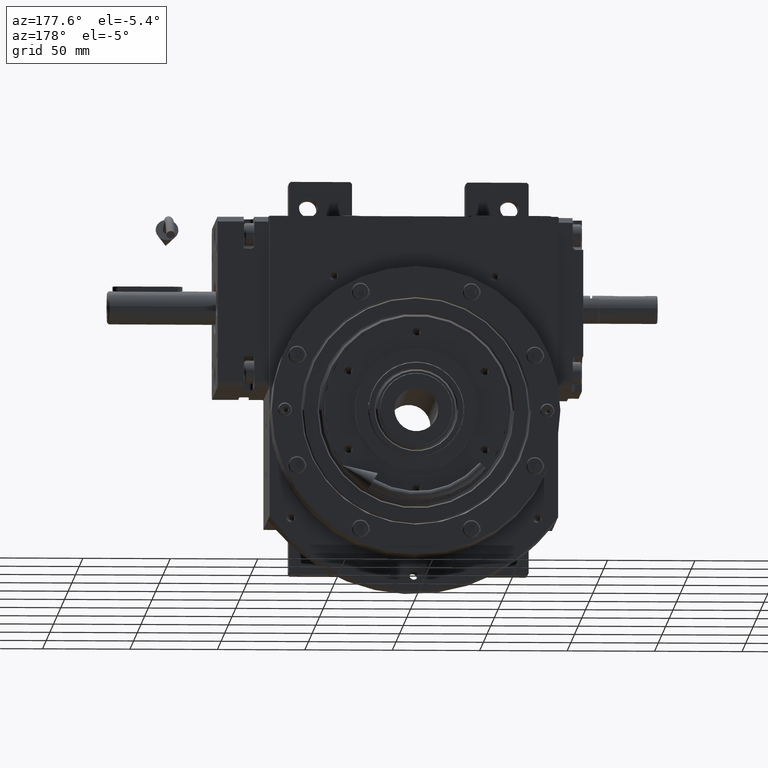
[diagram: clean part render]
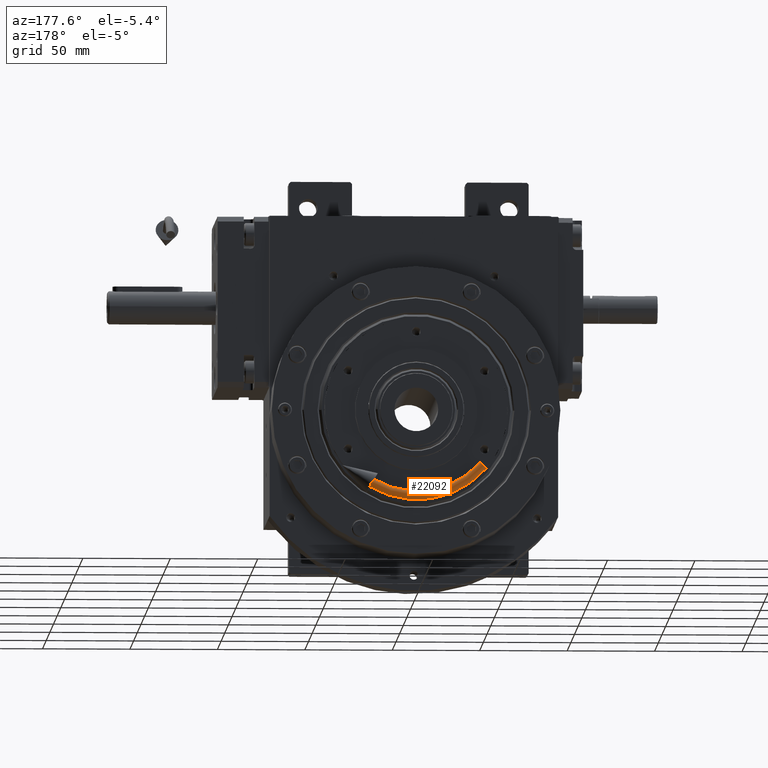
[diagram: same view with one face highlighted and labeled with its STEP entity id]
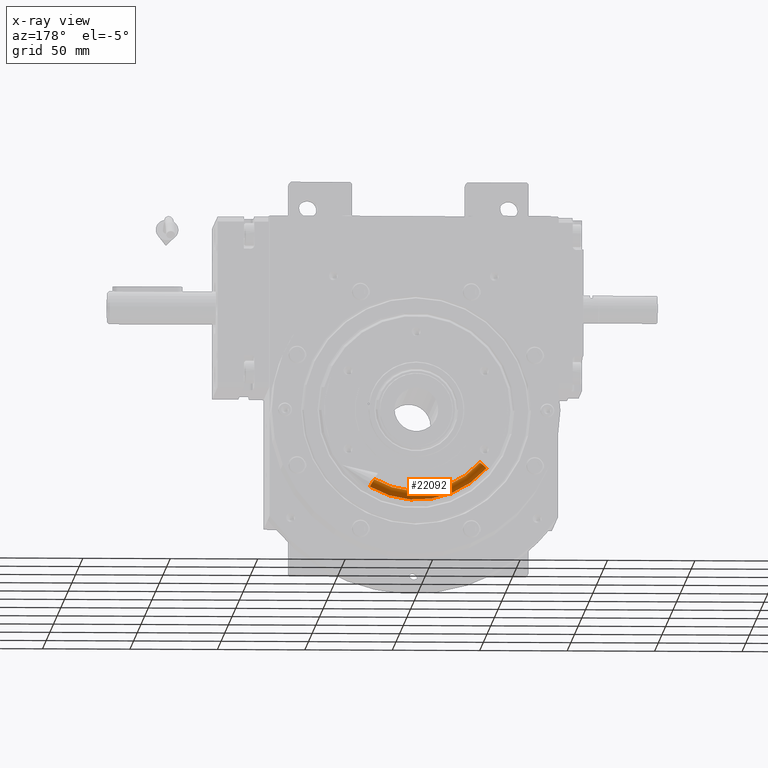
[diagram: x-ray of the same camera — body ghosted, the highlighted face saturated]
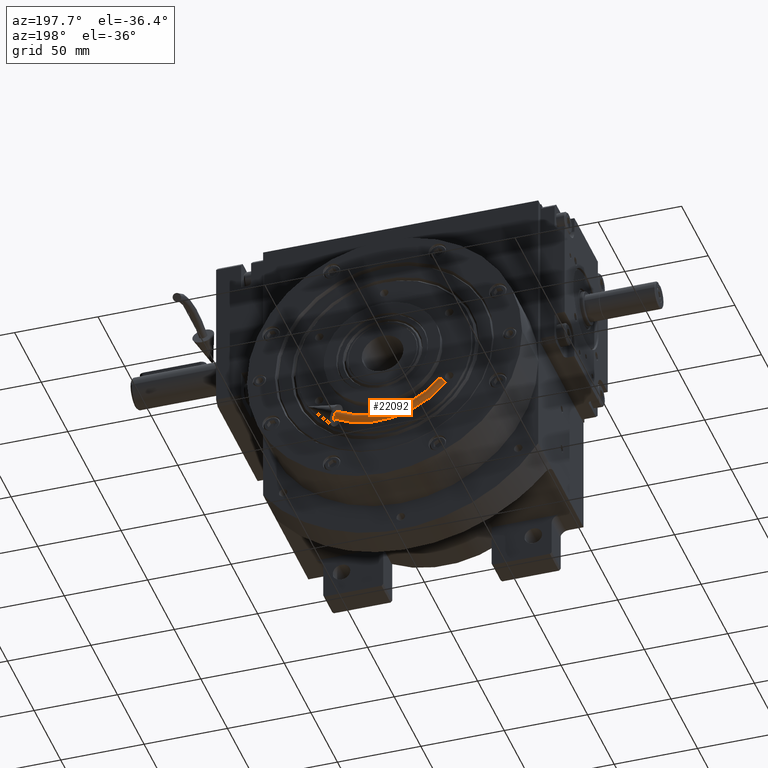
[diagram: same view with one face highlighted and labeled with its STEP entity id]
A machine part, auxiliary view. The second image highlights one B-rep face of the part: STEP entity #22092.
The next image is the same camera in x-ray: the body ghosted, the highlighted face saturated — about 0% of this face is hidden behind the body in this view.
A second angle (auxiliary view) of the same face is appended — the face is thin or edge-on in the first view.
In plain terms, the highlighted toroidal blend (fillet) surface has major radius 50 mm and minor (blend) radius 2.5 mm.
Its self-contained STEP definition (entity closure, byte-faithful):
#975 = VERTEX_POINT ( 'NONE', #31936 ) ;
#1110 = ORIENTED_EDGE ( 'NONE', *, *, #37345, .F. ) ;
#2006 = EDGE_LOOP ( 'NONE', ( #1110, #38411, #59500, #38808 ) ) ;
#2933 = CARTESIAN_POINT ( 'NONE',  ( -47.50000000001650591, 0.000000000000000000, -1.401656568589166416E-14 ) ) ;
#6384 = DIRECTION ( 'NONE',  ( 0.9848077530122086864, -2.010362446775138044E-16, 0.1736481776669274446 ) ) ;
#6543 = DIRECTION ( 'NONE',  ( 1.000000000000000000, -2.041375527991181795E-16, 0.000000000000000000 ) ) ;
#6775 = CARTESIAN_POINT ( 'NONE',  ( -8.682408883346308670, -1.387778780781445676E-14, 49.24038765061003176 ) ) ;
#7816 = VERTEX_POINT ( 'NONE', #56742 ) ;
#9764 = CIRCLE ( 'NONE', #51076, 47.50000000001686828 ) ;
#10281 = EDGE_CURVE ( 'NONE', #51825, #29783, #9764, .T. ) ;
#11265 = CIRCLE ( 'NONE', #52600, 2.499999999983113064 ) ;
#12071 = CARTESIAN_POINT ( 'NONE',  ( 0.000000000000000000, -1.387778780781445676E-14, 0.000000000000000000 ) ) ;
#13627 = FACE_OUTER_BOUND ( 'NONE', #2006, .T. ) ;
#15106 = CARTESIAN_POINT ( 'NONE',  ( 0.000000000000000000, -1.387778780781445676E-14, 0.000000000000000000 ) ) ;
#16641 = DIRECTION ( 'NONE',  ( 1.000000000000000000, 0.000000000000000000, -5.551115123125813517E-17 ) ) ;
#19640 = DIRECTION ( 'NONE',  ( 1.000000000000000000, -2.041375527991182042E-16, 0.000000000000000000 ) ) ;
#19916 = CIRCLE ( 'NONE', #65918, 52.49999999998313882 ) ;
#20682 = EDGE_CURVE ( 'NONE', #29783, #975, #59256, .T. ) ;
#22092 = ADVANCED_FACE ( 'NONE', ( #13627 ), #67649, .T. ) ;
#29783 = VERTEX_POINT ( 'NONE', #2933 ) ;
#29984 = CARTESIAN_POINT ( 'NONE',  ( 6.249910015488181172E-32, -1.357162610802968412E-14, -3.773734306815928641E-48 ) ) ;
#31936 = CARTESIAN_POINT ( 'NONE',  ( -52.49999999998293276, -3.160566285864233684E-15, -1.373900992973723831E-14 ) ) ;
#32090 = DIRECTION ( 'NONE',  ( -2.041375527991182042E-16, -1.000000000000000000, 1.232595164407830946E-32 ) ) ;
#32543 = CARTESIAN_POINT ( 'NONE',  ( -49.99999999999962341, 0.000000000000000000, -1.387778780781445676E-14 ) ) ;
#33342 = CARTESIAN_POINT ( 'NONE',  ( -8.248288439181953535, -1.188784069127382043E-14, 46.77836826809632953 ) ) ;
#37345 = EDGE_CURVE ( 'NONE', #7816, #975, #19916, .T. ) ;
#38411 = ORIENTED_EDGE ( 'NONE', *, *, #71132, .F. ) ;
#38808 = ORIENTED_EDGE ( 'NONE', *, *, #20682, .T. ) ;
#41586 = AXIS2_PLACEMENT_3D ( 'NONE', #32543, #44349, #16641 ) ;
#42899 = AXIS2_PLACEMENT_3D ( 'NONE', #15106, #32090, #64237 ) ;
#44349 = DIRECTION ( 'NONE',  ( 5.551115123125820913E-17, 0.000000000000000000, 1.000000000000000000 ) ) ;
#51076 = AXIS2_PLACEMENT_3D ( 'NONE', #29984, #69470, #19640 ) ;
#51825 = VERTEX_POINT ( 'NONE', #33342 ) ;
#52600 = AXIS2_PLACEMENT_3D ( 'NONE', #6775, #6384, #62159 ) ;
#56742 = CARTESIAN_POINT ( 'NONE',  ( -9.116529327510729530, -1.201676182087502474E-14, 51.70240703312413189 ) ) ;
#57543 = DIRECTION ( 'NONE',  ( -2.041375527991182042E-16, -1.000000000000000000, 1.232595164407830946E-32 ) ) ;
#59256 = CIRCLE ( 'NONE', #41586, 2.499999999983113064 ) ;
#59500 = ORIENTED_EDGE ( 'NONE', *, *, #10281, .T. ) ;
#62159 = DIRECTION ( 'NONE',  ( 0.1736481776669271393, 1.686894387621676009E-16, -0.9848077530122086864 ) ) ;
#64237 = DIRECTION ( 'NONE',  ( 1.000000000000000000, -2.041375527991182042E-16, -5.551115123125820913E-17 ) ) ;
#65918 = AXIS2_PLACEMENT_3D ( 'NONE', #12071, #57543, #6543 ) ;
#67649 = TOROIDAL_SURFACE ( 'NONE', #42899, 50.00000000000000000, 2.499999999983133048 ) ;
#69470 = DIRECTION ( 'NONE',  ( -2.041375527991182042E-16, -1.000000000000000000, 1.232595164407830946E-32 ) ) ;
#71132 = EDGE_CURVE ( 'NONE', #51825, #7816, #11265, .T. ) ;